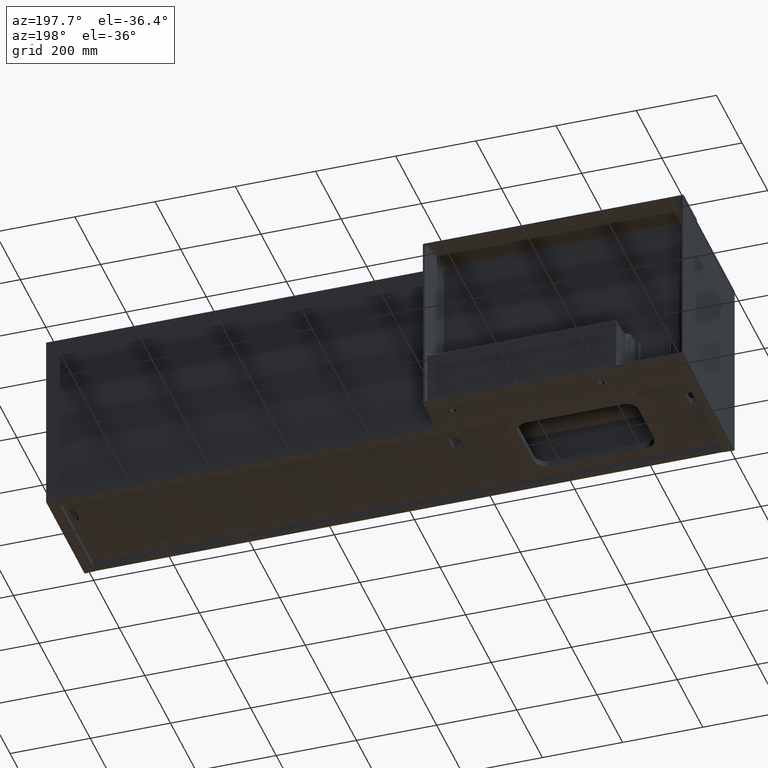
[diagram: clean part render]
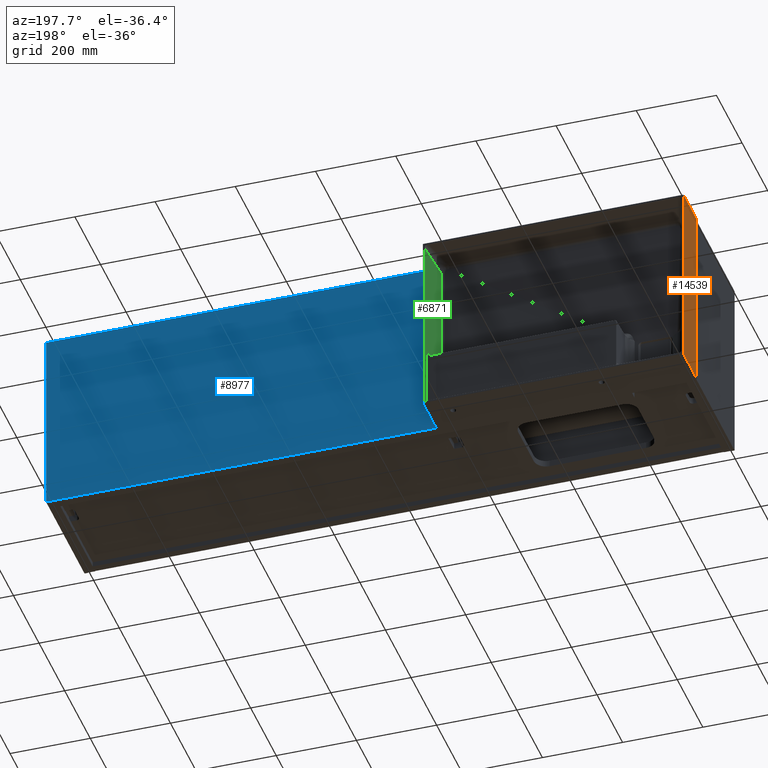
[diagram: same view with three faces highlighted in distinct colors, each labeled with its STEP entity id]
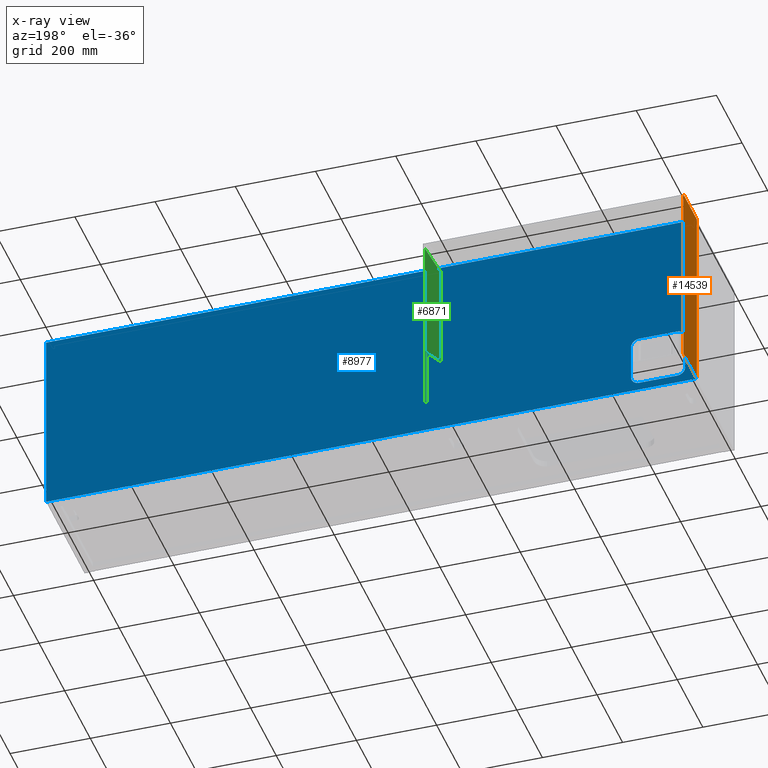
[diagram: x-ray of the same camera — body ghosted, the three highlighted faces saturated]
A machine part, auxiliary view with three faces highlighted in distinct colors.
The next image is the same camera in x-ray (body ghosted, the three faces saturated) — at least one of them is partly hidden behind the body in this view.
Their STEP definitions:

[orange] entity #14539 — the highlighted planar face has unit normal (1, -0, 0).
#139 = CARTESIAN_POINT ( 'NONE',  ( 5.551115123125782702E-14, 300.0000000000000000, -470.0000000000000000 ) ) ;
#757 = EDGE_CURVE ( 'NONE', #15812, #8875, #5511, .T. ) ;
#2839 = VECTOR ( 'NONE', #14065, 1000.000000000000000 ) ;
#2949 = DIRECTION ( 'NONE',  ( -0.0000000000000000000, -0.0000000000000000000, 1.000000000000000000 ) ) ;
#3284 = DIRECTION ( 'NONE',  ( 1.000000000000000000, -0.0000000000000000000, 0.0000000000000000000 ) ) ;
#3804 = CARTESIAN_POINT ( 'NONE',  ( 5.551115123125782702E-14, 300.0000000000000000, 0.0000000000000000000 ) ) ;
#3977 = DIRECTION ( 'NONE',  ( -0.0000000000000000000, -1.000000000000000000, -0.0000000000000000000 ) ) ;
#4146 = LINE ( 'NONE', #9113, #2839 ) ;
#4288 = EDGE_CURVE ( 'NONE', #15812, #7259, #4146, .T. ) ;
#4528 = FACE_OUTER_BOUND ( 'NONE', #8131, .T. ) ;
#4898 = CARTESIAN_POINT ( 'NONE',  ( 5.551115123125782702E-14, 403.9999999999999432, 0.0000000000000000000 ) ) ;
#5414 = LINE ( 'NONE', #14112, #6135 ) ;
#5511 = LINE ( 'NONE', #10473, #8385 ) ;
#5785 = ORIENTED_EDGE ( 'NONE', *, *, #757, .T. ) ;
#6135 = VECTOR ( 'NONE', #2949, 1000.000000000000000 ) ;
#7259 = VERTEX_POINT ( 'NONE', #3804 ) ;
#8131 = EDGE_LOOP ( 'NONE', ( #10406, #5785, #13480, #14176 ) ) ;
#8264 = DIRECTION ( 'NONE',  ( 0.0000000000000000000, 0.0000000000000000000, -1.000000000000000000 ) ) ;
#8385 = VECTOR ( 'NONE', #15446, 1000.000000000000000 ) ;
#8754 = AXIS2_PLACEMENT_3D ( 'NONE', #14457, #3284, #8264 ) ;
#8875 = VERTEX_POINT ( 'NONE', #12324 ) ;
#9113 = CARTESIAN_POINT ( 'NONE',  ( 5.551115123125782702E-14, 404.9999999999999432, 0.0000000000000000000 ) ) ;
#9491 = PLANE ( 'NONE',  #8754 ) ;
#10165 = LINE ( 'NONE', #15136, #13365 ) ;
#10406 = ORIENTED_EDGE ( 'NONE', *, *, #4288, .F. ) ;
#10473 = CARTESIAN_POINT ( 'NONE',  ( 5.551115123125782702E-14, 403.9999999999999432, 0.0000000000000000000 ) ) ;
#11225 = EDGE_CURVE ( 'NONE', #8875, #11858, #10165, .T. ) ;
#11858 = VERTEX_POINT ( 'NONE', #139 ) ;
#12324 = CARTESIAN_POINT ( 'NONE',  ( 5.551115123125782702E-14, 403.9999999999999432, -470.0000000000000000 ) ) ;
#13365 = VECTOR ( 'NONE', #3977, 1000.000000000000000 ) ;
#13424 = EDGE_CURVE ( 'NONE', #11858, #7259, #5414, .T. ) ;
#13480 = ORIENTED_EDGE ( 'NONE', *, *, #11225, .T. ) ;
#14065 = DIRECTION ( 'NONE',  ( -0.0000000000000000000, -1.000000000000000000, -0.0000000000000000000 ) ) ;
#14112 = CARTESIAN_POINT ( 'NONE',  ( 5.551115123125782702E-14, 300.0000000000000000, 0.0000000000000000000 ) ) ;
#14176 = ORIENTED_EDGE ( 'NONE', *, *, #13424, .T. ) ;
#14457 = CARTESIAN_POINT ( 'NONE',  ( 5.551115123125782702E-14, 404.9999999999999432, 0.0000000000000000000 ) ) ;
#14539 = ADVANCED_FACE ( 'NONE', ( #4528 ), #9491, .F. ) ;
#15136 = CARTESIAN_POINT ( 'NONE',  ( 5.551115123125782702E-14, 404.9999999999999432, -470.0000000000000000 ) ) ;
#15446 = DIRECTION ( 'NONE',  ( -0.0000000000000000000, -0.0000000000000000000, -1.000000000000000000 ) ) ;
#15812 = VERTEX_POINT ( 'NONE', #4898 ) ;

[blue] entity #8977 — the highlighted planar face has unit normal (0, 1, 0).
#608 = EDGE_CURVE ( 'NONE', #15307, #1525, #10238, .T. ) ;
#719 = EDGE_LOOP ( 'NONE', ( #9439, #6269, #4335, #9647 ) ) ;
#737 = CIRCLE ( 'NONE', #7787, 20.00000000000001776 ) ;
#811 = DIRECTION ( 'NONE',  ( 0.0000000000000000000, 1.000000000000000000, 0.0000000000000000000 ) ) ;
#875 = VECTOR ( 'NONE', #12451, 1000.000000000000000 ) ;
#1059 = EDGE_LOOP ( 'NONE', ( #13707, #15667, #14142, #15832, #7238, #8122, #10084, #15743 ) ) ;
#1101 = AXIS2_PLACEMENT_3D ( 'NONE', #15854, #4702, #9668 ) ;
#1525 = VERTEX_POINT ( 'NONE', #6134 ) ;
#1774 = EDGE_CURVE ( 'NONE', #13105, #4227, #9297, .T. ) ;
#1901 = CARTESIAN_POINT ( 'NONE',  ( 1623.000000000000000, 300.0000000000000000, 0.0000000000000000000 ) ) ;
#1995 = VERTEX_POINT ( 'NONE', #8044 ) ;
#2046 = FACE_OUTER_BOUND ( 'NONE', #719, .T. ) ;
#2335 = VERTEX_POINT ( 'NONE', #10232 ) ;
#2365 = DIRECTION ( 'NONE',  ( 0.0000000000000000000, 0.0000000000000000000, 1.000000000000000000 ) ) ;
#2509 = LINE ( 'NONE', #7506, #875 ) ;
#2516 = VERTEX_POINT ( 'NONE', #1901 ) ;
#2550 = DIRECTION ( 'NONE',  ( 0.0000000000000000000, 1.000000000000000000, 0.0000000000000000000 ) ) ;
#2580 = CIRCLE ( 'NONE', #9620, 19.99999999999996092 ) ;
#2698 = EDGE_CURVE ( 'NONE', #10076, #2335, #10528, .T. ) ;
#2749 = CARTESIAN_POINT ( 'NONE',  ( 49.00000000000015632, 300.0000000000000000, -449.9999999999999432 ) ) ;
#2832 = DIRECTION ( 'NONE',  ( 0.0000000000000000000, 0.0000000000000000000, 1.000000000000000000 ) ) ;
#3079 = DIRECTION ( 'NONE',  ( -1.000000000000000000, -0.0000000000000000000, 5.843279076974506551E-16 ) ) ;
#3301 = CARTESIAN_POINT ( 'NONE',  ( 144.0000000000001137, 300.0000000000000000, -429.9999999999999432 ) ) ;
#3854 = CARTESIAN_POINT ( 'NONE',  ( 29.00000000000013500, 300.0000000000000000, -339.9999999999999432 ) ) ;
#4052 = DIRECTION ( 'NONE',  ( -0.0000000000000000000, -0.0000000000000000000, -1.000000000000000000 ) ) ;
#4227 = VERTEX_POINT ( 'NONE', #2749 ) ;
#4335 = ORIENTED_EDGE ( 'NONE', *, *, #5387, .F. ) ;
#4352 = DIRECTION ( 'NONE',  ( 0.0000000000000000000, 0.0000000000000000000, 1.000000000000000000 ) ) ;
#4702 = DIRECTION ( 'NONE',  ( 0.0000000000000000000, 1.000000000000000000, 0.0000000000000000000 ) ) ;
#4756 = CARTESIAN_POINT ( 'NONE',  ( 1623.000000000000000, 300.0000000000000000, -2091.019740780475331 ) ) ;
#4760 = AXIS2_PLACEMENT_3D ( 'NONE', #13717, #2550, #7548 ) ;
#4832 = EDGE_CURVE ( 'NONE', #13900, #15307, #2580, .T. ) ;
#4859 = CARTESIAN_POINT ( 'NONE',  ( 49.00000000000015632, 300.0000000000000000, -319.9999999999999432 ) ) ;
#5017 = LINE ( 'NONE', #9987, #6483 ) ;
#5208 = EDGE_CURVE ( 'NONE', #1525, #13105, #737, .T. ) ;
#5303 = EDGE_CURVE ( 'NONE', #6558, #13900, #16005, .T. ) ;
#5387 = EDGE_CURVE ( 'NONE', #2516, #2335, #5017, .T. ) ;
#5541 = CARTESIAN_POINT ( 'NONE',  ( 49.00000000000015632, 300.0000000000000000, -319.9999999999998295 ) ) ;
#5823 = DIRECTION ( 'NONE',  ( 0.0000000000000000000, -0.0000000000000000000, 1.000000000000000000 ) ) ;
#5936 = CARTESIAN_POINT ( 'NONE',  ( 2.000000000000001776, 300.0000000000000000, -470.0000000000000000 ) ) ;
#6087 = EDGE_CURVE ( 'NONE', #12791, #6558, #15939, .T. ) ;
#6134 = CARTESIAN_POINT ( 'NONE',  ( 164.0000000000001421, 300.0000000000000000, -429.9999999999999432 ) ) ;
#6269 = ORIENTED_EDGE ( 'NONE', *, *, #2698, .T. ) ;
#6483 = VECTOR ( 'NONE', #14952, 1000.000000000000000 ) ;
#6558 = VERTEX_POINT ( 'NONE', #5541 ) ;
#7045 = PLANE ( 'NONE',  #11774 ) ;
#7092 = EDGE_CURVE ( 'NONE', #4227, #1995, #8154, .T. ) ;
#7238 = ORIENTED_EDGE ( 'NONE', *, *, #5208, .F. ) ;
#7506 = CARTESIAN_POINT ( 'NONE',  ( 2.000000000000001776, 300.0000000000000000, -470.0000000000000000 ) ) ;
#7548 = DIRECTION ( 'NONE',  ( 0.0000000000000000000, 0.0000000000000000000, 1.000000000000000000 ) ) ;
#7787 = AXIS2_PLACEMENT_3D ( 'NONE', #3301, #8280, #13232 ) ;
#8044 = CARTESIAN_POINT ( 'NONE',  ( 29.00000000000013500, 300.0000000000000000, -429.9999999999999432 ) ) ;
#8122 = ORIENTED_EDGE ( 'NONE', *, *, #608, .F. ) ;
#8154 = CIRCLE ( 'NONE', #1101, 20.00000000000001776 ) ;
#8280 = DIRECTION ( 'NONE',  ( 0.0000000000000000000, 1.000000000000000000, 0.0000000000000000000 ) ) ;
#8577 = CARTESIAN_POINT ( 'NONE',  ( 144.0000000000001137, 300.0000000000000000, -339.9999999999999432 ) ) ;
#8797 = VERTEX_POINT ( 'NONE', #15436 ) ;
#8977 = ADVANCED_FACE ( 'NONE', ( #13213, #2046 ), #7045, .T. ) ;
#9044 = LINE ( 'NONE', #13994, #13672 ) ;
#9077 = EDGE_CURVE ( 'NONE', #8797, #2516, #15905, .T. ) ;
#9297 = LINE ( 'NONE', #14254, #15140 ) ;
#9439 = ORIENTED_EDGE ( 'NONE', *, *, #11823, .F. ) ;
#9620 = AXIS2_PLACEMENT_3D ( 'NONE', #8577, #13529, #2365 ) ;
#9647 = ORIENTED_EDGE ( 'NONE', *, *, #9077, .F. ) ;
#9668 = DIRECTION ( 'NONE',  ( 0.0000000000000000000, 0.0000000000000000000, 1.000000000000000000 ) ) ;
#9726 = DIRECTION ( 'NONE',  ( 0.0000000000000000000, 0.0000000000000000000, 1.000000000000000000 ) ) ;
#9823 = DIRECTION ( 'NONE',  ( 1.000000000000000000, 0.0000000000000000000, -5.843279076974506551E-16 ) ) ;
#9987 = CARTESIAN_POINT ( 'NONE',  ( 2.000000000000001776, 300.0000000000000000, 0.0000000000000000000 ) ) ;
#10076 = VERTEX_POINT ( 'NONE', #5936 ) ;
#10084 = ORIENTED_EDGE ( 'NONE', *, *, #4832, .F. ) ;
#10232 = CARTESIAN_POINT ( 'NONE',  ( 2.000000000000001776, 300.0000000000000000, 0.0000000000000000000 ) ) ;
#10238 = LINE ( 'NONE', #15209, #10923 ) ;
#10433 = VECTOR ( 'NONE', #4352, 1000.000000000000000 ) ;
#10528 = LINE ( 'NONE', #15504, #10433 ) ;
#10649 = VECTOR ( 'NONE', #9823, 1000.000000000000000 ) ;
#10795 = CARTESIAN_POINT ( 'NONE',  ( 164.0000000000001421, 300.0000000000000000, -339.9999999999999432 ) ) ;
#10923 = VECTOR ( 'NONE', #4052, 1000.000000000000000 ) ;
#11774 = AXIS2_PLACEMENT_3D ( 'NONE', #11993, #811, #5823 ) ;
#11823 = EDGE_CURVE ( 'NONE', #10076, #8797, #2509, .T. ) ;
#11855 = CARTESIAN_POINT ( 'NONE',  ( 144.0000000000001137, 300.0000000000000000, -450.0000000000000000 ) ) ;
#11993 = CARTESIAN_POINT ( 'NONE',  ( 2.000000000000001776, 300.0000000000000000, -2091.019740780475331 ) ) ;
#12451 = DIRECTION ( 'NONE',  ( 1.000000000000000000, 0.0000000000000000000, -0.0000000000000000000 ) ) ;
#12791 = VERTEX_POINT ( 'NONE', #3854 ) ;
#13040 = CARTESIAN_POINT ( 'NONE',  ( 144.0000000000001137, 300.0000000000000000, -320.0000000000000000 ) ) ;
#13081 = VECTOR ( 'NONE', #9726, 1000.000000000000000 ) ;
#13105 = VERTEX_POINT ( 'NONE', #11855 ) ;
#13213 = FACE_BOUND ( 'NONE', #1059, .T. ) ;
#13232 = DIRECTION ( 'NONE',  ( 0.0000000000000000000, 0.0000000000000000000, 1.000000000000000000 ) ) ;
#13529 = DIRECTION ( 'NONE',  ( 0.0000000000000000000, 1.000000000000000000, 0.0000000000000000000 ) ) ;
#13672 = VECTOR ( 'NONE', #2832, 1000.000000000000000 ) ;
#13707 = ORIENTED_EDGE ( 'NONE', *, *, #6087, .F. ) ;
#13717 = CARTESIAN_POINT ( 'NONE',  ( 49.00000000000015632, 300.0000000000000000, -339.9999999999999432 ) ) ;
#13900 = VERTEX_POINT ( 'NONE', #13040 ) ;
#13994 = CARTESIAN_POINT ( 'NONE',  ( 29.00000000000013500, 300.0000000000000000, -429.9999999999999432 ) ) ;
#14142 = ORIENTED_EDGE ( 'NONE', *, *, #7092, .F. ) ;
#14172 = EDGE_CURVE ( 'NONE', #1995, #12791, #9044, .T. ) ;
#14254 = CARTESIAN_POINT ( 'NONE',  ( 49.00000000000015632, 300.0000000000000000, -449.9999999999999432 ) ) ;
#14952 = DIRECTION ( 'NONE',  ( -1.000000000000000000, -0.0000000000000000000, -0.0000000000000000000 ) ) ;
#15140 = VECTOR ( 'NONE', #3079, 1000.000000000000000 ) ;
#15209 = CARTESIAN_POINT ( 'NONE',  ( 164.0000000000001421, 300.0000000000000000, -429.9999999999999432 ) ) ;
#15307 = VERTEX_POINT ( 'NONE', #10795 ) ;
#15436 = CARTESIAN_POINT ( 'NONE',  ( 1623.000000000000000, 300.0000000000000000, -470.0000000000000000 ) ) ;
#15504 = CARTESIAN_POINT ( 'NONE',  ( 2.000000000000001776, 300.0000000000000000, -2091.019740780475331 ) ) ;
#15667 = ORIENTED_EDGE ( 'NONE', *, *, #14172, .F. ) ;
#15743 = ORIENTED_EDGE ( 'NONE', *, *, #5303, .F. ) ;
#15832 = ORIENTED_EDGE ( 'NONE', *, *, #1774, .F. ) ;
#15854 = CARTESIAN_POINT ( 'NONE',  ( 49.00000000000015632, 300.0000000000000000, -429.9999999999999432 ) ) ;
#15905 = LINE ( 'NONE', #4756, #13081 ) ;
#15939 = CIRCLE ( 'NONE', #4760, 20.00000000000001776 ) ;
#16005 = LINE ( 'NONE', #4859, #10649 ) ;

[green] entity #6871 — the highlighted planar face has unit normal (0.9659, -0.2588, -0).
#27 = B_SPLINE_CURVE_WITH_KNOTS ( 'NONE', 3,
 ( #9209, #14167, #2999, #7984 ),
 .UNSPECIFIED., .F., .F.,
 ( 4, 4 ),
 ( 0.07655764724086498718, 0.9901175872699210512 ),
 .UNSPECIFIED. ) ;
#128 = VECTOR ( 'NONE', #12958, 1000.000000000000000 ) ;
#348 = VERTEX_POINT ( 'NONE', #6953 ) ;
#891 = CARTESIAN_POINT ( 'NONE',  ( 626.4423275492905532, 335.7418235437310159, -304.5266062753667597 ) ) ;
#945 = CARTESIAN_POINT ( 'NONE',  ( 642.7177057523090298, 396.4823619097949745, -462.7177057523089729 ) ) ;
#1175 = CARTESIAN_POINT ( 'NONE',  ( 642.7177057523090298, 396.4823619097949745, -317.0902939944746208 ) ) ;
#1806 = LINE ( 'NONE', #6800, #5030 ) ;
#2061 = CARTESIAN_POINT ( 'NONE',  ( 644.8014011616839980, 404.2588190450799175, -14.95944492918210855 ) ) ;
#2369 = B_SPLINE_CURVE_WITH_KNOTS ( 'NONE', 3,
 ( #10071, #15034, #3872, #8841 ),
 .UNSPECIFIED., .F., .F.,
 ( 4, 4 ),
 ( 0.0000000000000000000, 0.9136338815454096984 ),
 .UNSPECIFIED. ) ;
#2556 = ORIENTED_EDGE ( 'NONE', *, *, #7943, .F. ) ;
#2603 = EDGE_LOOP ( 'NONE', ( #11871, #7252, #2556, #14428, #7270, #13741 ) ) ;
#2657 = DIRECTION ( 'NONE',  ( 0.2588190451025213501, 0.9659258262890680902, 0.0000000000000000000 ) ) ;
#2999 = CARTESIAN_POINT ( 'NONE',  ( 638.6817099574942631, 381.4198205444120049, -24.20949753512661928 ) ) ;
#3002 = LINE ( 'NONE', #7987, #9476 ) ;
#3015 = LINE ( 'NONE', #8002, #128 ) ;
#3071 = VERTEX_POINT ( 'NONE', #1175 ) ;
#3872 = CARTESIAN_POINT ( 'NONE',  ( 631.8674536169631892, 355.9886696657522407, -308.7145021817356110 ) ) ;
#3899 = PLANE ( 'NONE',  #7634 ) ;
#4917 = CARTESIAN_POINT ( 'NONE',  ( 626.4423275492607672, 335.7418235436196596, -5.000000000000004441 ) ) ;
#5030 = VECTOR ( 'NONE', #11750, 1000.000000000000000 ) ;
#6267 = EDGE_CURVE ( 'NONE', #15273, #10348, #1806, .T. ) ;
#6800 = CARTESIAN_POINT ( 'NONE',  ( 644.8014011616900234, 404.2588190451024843, -5.000000000000004441 ) ) ;
#6871 = ADVANCED_FACE ( 'NONE', ( #15060 ), #3899, .F. ) ;
#6953 = CARTESIAN_POINT ( 'NONE',  ( 626.4423275491126333, 335.7418235430671984, -42.70960274701607062 ) ) ;
#7252 = ORIENTED_EDGE ( 'NONE', *, *, #6267, .T. ) ;
#7270 = ORIENTED_EDGE ( 'NONE', *, *, #10570, .T. ) ;
#7634 = AXIS2_PLACEMENT_3D ( 'NONE', #8868, #13819, #2657 ) ;
#7943 = EDGE_CURVE ( 'NONE', #11647, #10348, #3002, .T. ) ;
#7984 = CARTESIAN_POINT ( 'NONE',  ( 644.8014011616839980, 404.2588190450799175, -14.95944492918210855 ) ) ;
#7987 = CARTESIAN_POINT ( 'NONE',  ( 616.1204086644462450, 297.2198978338881830, -436.1204086644463587 ) ) ;
#8002 = CARTESIAN_POINT ( 'NONE',  ( 642.7177057523090298, 396.4823619097949745, -5.000000000000004441 ) ) ;
#8153 = VECTOR ( 'NONE', #9884, 1000.000000000000000 ) ;
#8841 = CARTESIAN_POINT ( 'NONE',  ( 626.4423275492905532, 335.7418235437310159, -304.5266062753667597 ) ) ;
#8868 = CARTESIAN_POINT ( 'NONE',  ( 645.0000000000000000, 404.9999999999999432, -5.000000000000004441 ) ) ;
#9150 = EDGE_CURVE ( 'NONE', #12633, #348, #16068, .T. ) ;
#9209 = CARTESIAN_POINT ( 'NONE',  ( 626.4423275491126333, 335.7418235430671984, -42.70960274701607062 ) ) ;
#9476 = VECTOR ( 'NONE', #12942, 1000.000000000000227 ) ;
#9884 = DIRECTION ( 'NONE',  ( 2.433701038385323601E-16, 7.528563083090712696E-18, 1.000000000000000000 ) ) ;
#10071 = CARTESIAN_POINT ( 'NONE',  ( 642.7177057523090298, 396.4823619097949745, -317.0902939944746208 ) ) ;
#10348 = VERTEX_POINT ( 'NONE', #12914 ) ;
#10570 = EDGE_CURVE ( 'NONE', #3071, #12633, #2369, .T. ) ;
#10844 = EDGE_CURVE ( 'NONE', #348, #15273, #27, .T. ) ;
#11647 = VERTEX_POINT ( 'NONE', #945 ) ;
#11750 = DIRECTION ( 'NONE',  ( -2.413528314402514583E-16, -1.232595164407830946E-32, -1.000000000000000000 ) ) ;
#11871 = ORIENTED_EDGE ( 'NONE', *, *, #10844, .T. ) ;
#12633 = VERTEX_POINT ( 'NONE', #891 ) ;
#12914 = CARTESIAN_POINT ( 'NONE',  ( 644.8014011616897960, 404.2588190451024843, -464.8014011616899097 ) ) ;
#12942 = DIRECTION ( 'NONE',  ( 0.2505628070857320311, 0.9351131265310290708, -0.2505628070857320866 ) ) ;
#12958 = DIRECTION ( 'NONE',  ( 2.413528314402514583E-16, 1.232595164407830946E-32, 1.000000000000000000 ) ) ;
#13741 = ORIENTED_EDGE ( 'NONE', *, *, #9150, .T. ) ;
#13819 = DIRECTION ( 'NONE',  ( 0.9659258262890680902, -0.2588190451025213501, -2.331289331361310231E-16 ) ) ;
#13834 = EDGE_CURVE ( 'NONE', #11647, #3071, #3015, .T. ) ;
#14167 = CARTESIAN_POINT ( 'NONE',  ( 632.5620187533014587, 358.5808220437318710, -33.45955014107106962 ) ) ;
#14428 = ORIENTED_EDGE ( 'NONE', *, *, #13834, .T. ) ;
#15034 = CARTESIAN_POINT ( 'NONE',  ( 637.2925796846359390, 376.2355157877731813, -312.9023980881050875 ) ) ;
#15060 = FACE_OUTER_BOUND ( 'NONE', #2603, .T. ) ;
#15273 = VERTEX_POINT ( 'NONE', #2061 ) ;
#16068 = LINE ( 'NONE', #4917, #8153 ) ;